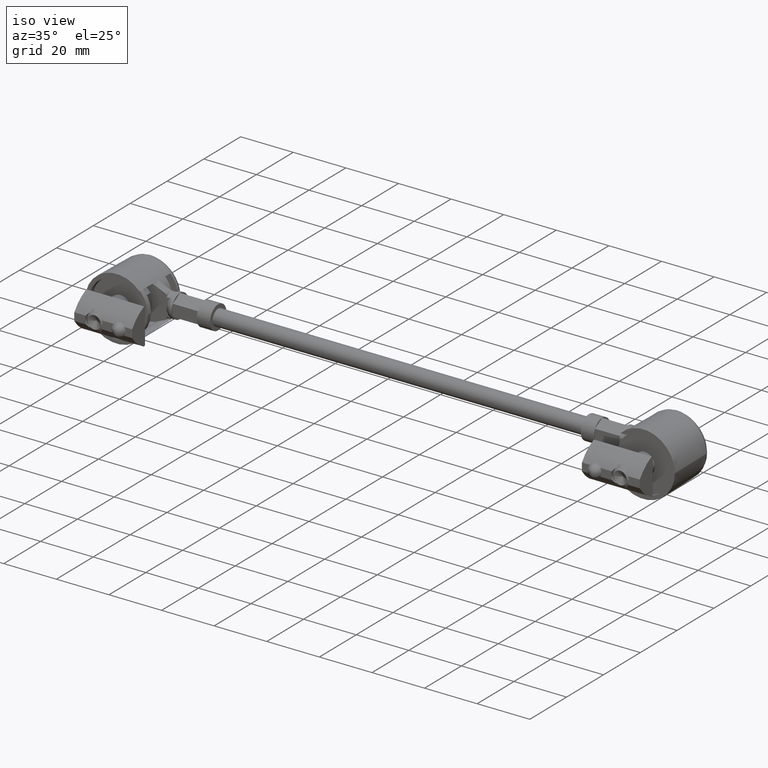
[diagram: clean part render]
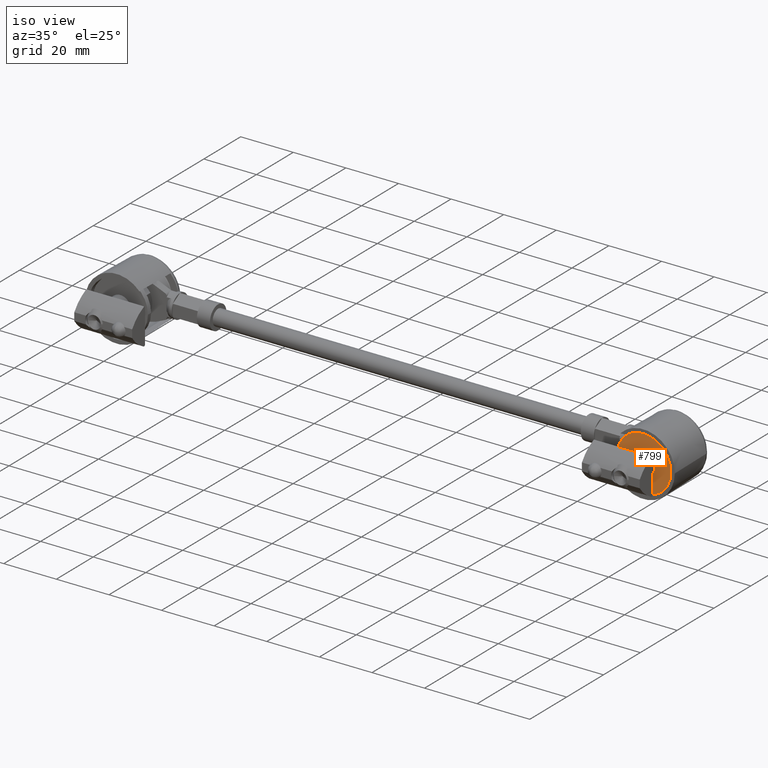
[diagram: same view with one face highlighted and labeled with its STEP entity id]
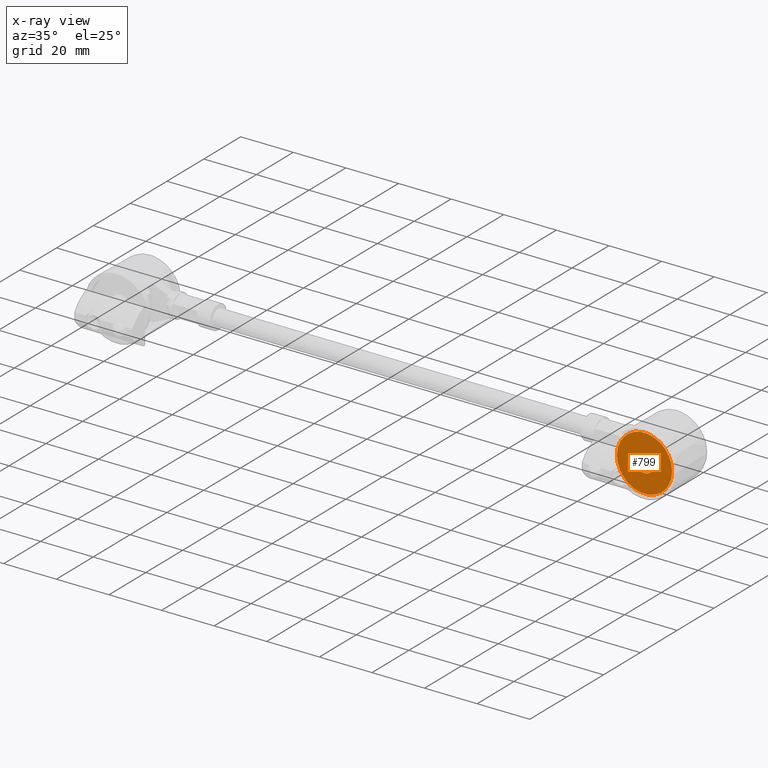
[diagram: x-ray of the same camera — body ghosted, the highlighted face saturated]
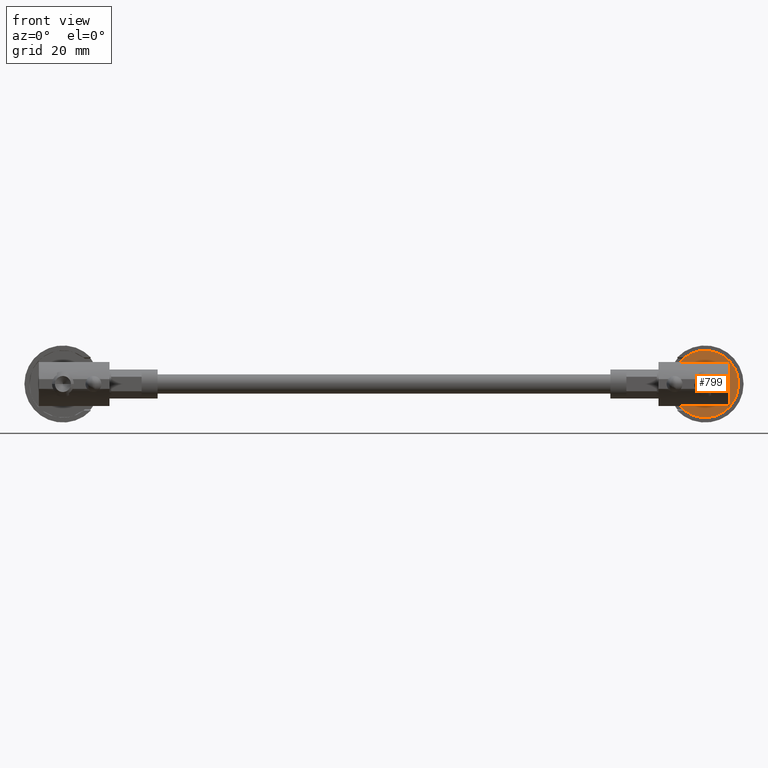
[diagram: same view with one face highlighted and labeled with its STEP entity id]
A machine part, iso view. The second image highlights one B-rep face of the part: STEP entity #799.
The next image is the same camera in x-ray: the body ghosted, the highlighted face saturated — about 0% of this face is hidden behind the body in this view.
A second angle (front view) of the same face is appended — the face is thin or edge-on in the first view.
In plain terms, the highlighted planar face has unit normal (0, 1, 0).
Its self-contained STEP definition (entity closure, byte-faithful):
#471 = DIRECTION ( 'NONE',  ( 0.0000000000000000000, 0.0000000000000000000, 1.000000000000000000 ) ) ;
#486 = EDGE_LOOP ( 'NONE', ( #7810, #851 ) ) ;
#799 = ADVANCED_FACE ( 'NONE', ( #6050, #6621 ), #4945, .F. ) ;
#851 = ORIENTED_EDGE ( 'NONE', *, *, #7673, .F. ) ;
#1063 = CARTESIAN_POINT ( 'NONE',  ( 0.0000000000000000000, 1.285879139104720800E-015, -10.50000000000000000 ) ) ;
#1145 = VERTEX_POINT ( 'NONE', #2044 ) ;
#1587 = DIRECTION ( 'NONE',  ( 0.0000000000000000000, 0.0000000000000000000, 1.000000000000000000 ) ) ;
#1871 = CIRCLE ( 'NONE', #4180, 3.399999999999999900 ) ;
#2044 = CARTESIAN_POINT ( 'NONE',  ( 0.0000000000000000000, 0.0000000000000000000, 10.50000000000000000 ) ) ;
#2116 = ORIENTED_EDGE ( 'NONE', *, *, #6289, .F. ) ;
#2632 = EDGE_CURVE ( 'NONE', #3959, #3514, #1871, .T. ) ;
#2981 = AXIS2_PLACEMENT_3D ( 'NONE', #6807, #7490, #7406 ) ;
#3432 = DIRECTION ( 'NONE',  ( 0.0000000000000000000, 0.0000000000000000000, 1.000000000000000000 ) ) ;
#3514 = VERTEX_POINT ( 'NONE', #5399 ) ;
#3587 = CARTESIAN_POINT ( 'NONE',  ( 0.0000000000000000000, 0.0000000000000000000, 0.0000000000000000000 ) ) ;
#3941 = EDGE_CURVE ( 'NONE', #1145, #5353, #8093, .T. ) ;
#3959 = VERTEX_POINT ( 'NONE', #6797 ) ;
#4103 = EDGE_LOOP ( 'NONE', ( #6976, #2116 ) ) ;
#4174 = DIRECTION ( 'NONE',  ( 1.000000000000000000, -0.0000000000000000000, -0.0000000000000000000 ) ) ;
#4180 = AXIS2_PLACEMENT_3D ( 'NONE', #6047, #4745, #1587 ) ;
#4269 = AXIS2_PLACEMENT_3D ( 'NONE', #5465, #4174, #471 ) ;
#4745 = DIRECTION ( 'NONE',  ( -1.000000000000000000, 0.0000000000000000000, 0.0000000000000000000 ) ) ;
#4832 = CIRCLE ( 'NONE', #7152, 3.399999999999999900 ) ;
#4945 = PLANE ( 'NONE',  #2981 ) ;
#5353 = VERTEX_POINT ( 'NONE', #1063 ) ;
#5399 = CARTESIAN_POINT ( 'NONE',  ( 0.0000000000000000000, 4.163799117101000600E-016, -3.399999999999999900 ) ) ;
#5465 = CARTESIAN_POINT ( 'NONE',  ( 0.0000000000000000000, 0.0000000000000000000, 0.0000000000000000000 ) ) ;
#6047 = CARTESIAN_POINT ( 'NONE',  ( 0.0000000000000000000, 0.0000000000000000000, 0.0000000000000000000 ) ) ;
#6050 = FACE_BOUND ( 'NONE', #4103, .T. ) ;
#6289 = EDGE_CURVE ( 'NONE', #3514, #3959, #4832, .T. ) ;
#6621 = FACE_OUTER_BOUND ( 'NONE', #486, .T. ) ;
#6797 = CARTESIAN_POINT ( 'NONE',  ( 0.0000000000000000000, 0.0000000000000000000, 3.399999999999999900 ) ) ;
#6807 = CARTESIAN_POINT ( 'NONE',  ( 0.0000000000000000000, 0.0000000000000000000, 0.0000000000000000000 ) ) ;
#6976 = ORIENTED_EDGE ( 'NONE', *, *, #2632, .F. ) ;
#7152 = AXIS2_PLACEMENT_3D ( 'NONE', #3587, #7247, #7356 ) ;
#7168 = DIRECTION ( 'NONE',  ( 1.000000000000000000, -0.0000000000000000000, -0.0000000000000000000 ) ) ;
#7193 = CARTESIAN_POINT ( 'NONE',  ( 0.0000000000000000000, 0.0000000000000000000, 0.0000000000000000000 ) ) ;
#7247 = DIRECTION ( 'NONE',  ( -1.000000000000000000, 0.0000000000000000000, 0.0000000000000000000 ) ) ;
#7356 = DIRECTION ( 'NONE',  ( 0.0000000000000000000, 0.0000000000000000000, 1.000000000000000000 ) ) ;
#7406 = DIRECTION ( 'NONE',  ( 0.0000000000000000000, 0.0000000000000000000, -1.000000000000000000 ) ) ;
#7490 = DIRECTION ( 'NONE',  ( 1.000000000000000000, 0.0000000000000000000, 0.0000000000000000000 ) ) ;
#7673 = EDGE_CURVE ( 'NONE', #5353, #1145, #7960, .T. ) ;
#7810 = ORIENTED_EDGE ( 'NONE', *, *, #3941, .F. ) ;
#7960 = CIRCLE ( 'NONE', #8079, 10.50000000000000000 ) ;
#8079 = AXIS2_PLACEMENT_3D ( 'NONE', #7193, #7168, #3432 ) ;
#8093 = CIRCLE ( 'NONE', #4269, 10.50000000000000000 ) ;